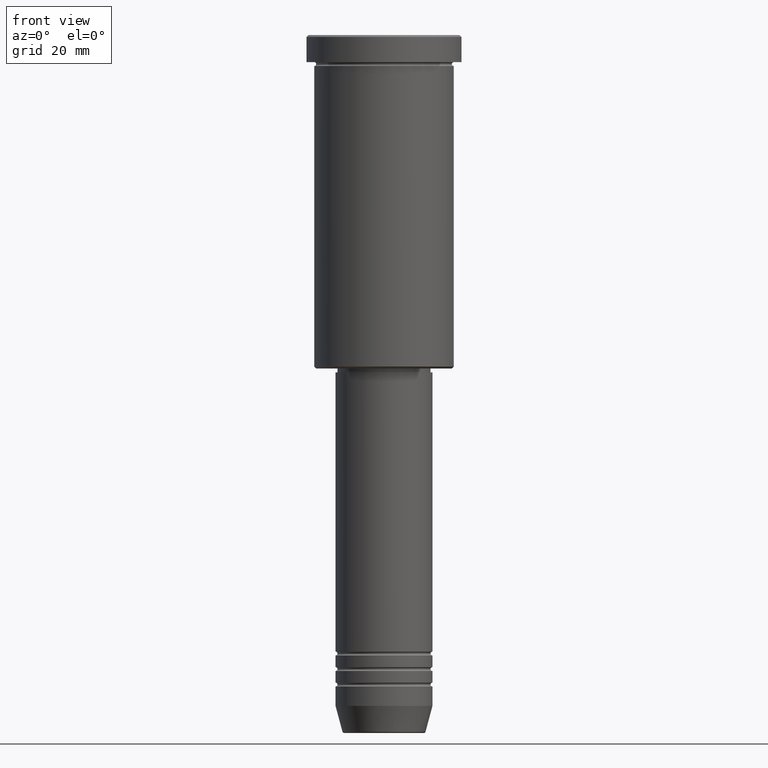
[diagram: clean part render]
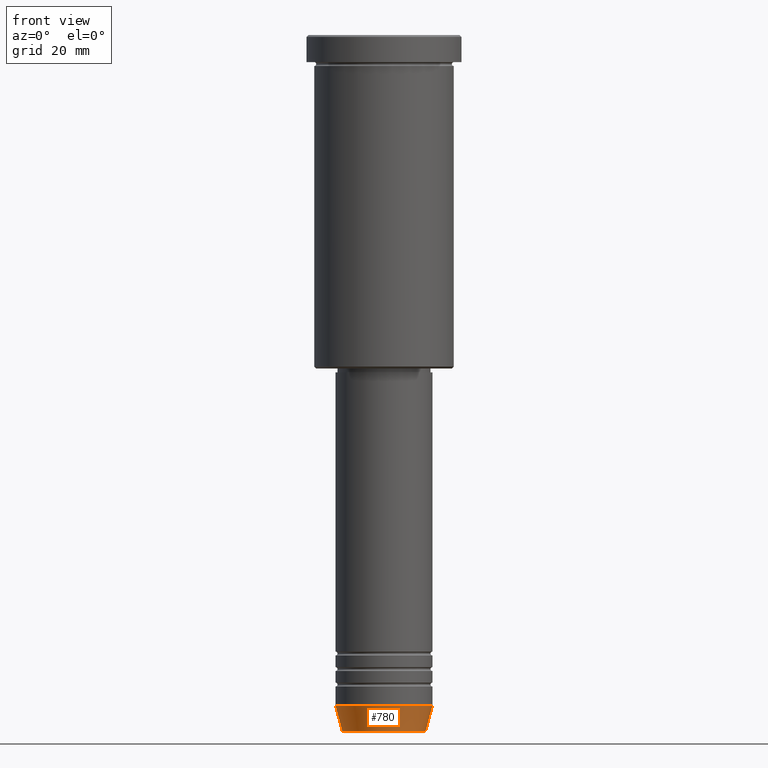
[diagram: same view with one face highlighted and labeled with its STEP entity id]
A machine part, front view. The second image highlights one B-rep face of the part: STEP entity #780.
In plain terms, the highlighted conical surface has half-angle 15 deg.
Its self-contained STEP definition (entity closure, byte-faithful):
#163 = VECTOR ( 'NONE', #670, 1000.000000000000000 ) ;
#178 = DIRECTION ( 'NONE',  ( 1.000000000000000000, 0.000000000000000000, 0.000000000000000000 ) ) ;
#197 = DIRECTION ( 'NONE',  ( -0.000000000000000000, -0.000000000000000000, 1.000000000000000000 ) ) ;
#213 = CARTESIAN_POINT ( 'NONE',  ( -10.72365507213719127, 1.422038742429750516E-15, -179.6294095225512706 ) ) ;
#271 = CARTESIAN_POINT ( 'NONE',  ( 12.50000000000000000, 0.000000000000000000, -173.0000000000000284 ) ) ;
#275 = DIRECTION ( 'NONE',  ( -0.000000000000000000, -0.000000000000000000, 1.000000000000000000 ) ) ;
#284 = CARTESIAN_POINT ( 'NONE',  ( 0.000000000000000000, 0.000000000000000000, -173.0000000000000284 ) ) ;
#299 = LINE ( 'NONE', #398, #163 ) ;
#368 = ORIENTED_EDGE ( 'NONE', *, *, #707, .F. ) ;
#393 = ORIENTED_EDGE ( 'NONE', *, *, #504, .F. ) ;
#398 = CARTESIAN_POINT ( 'NONE',  ( 12.50000000000000000, 0.000000000000000000, -173.0000000000000284 ) ) ;
#424 = CONICAL_SURFACE ( 'NONE', #873, 12.50000000000000000, 0.2617993877991500740 ) ;
#433 = VERTEX_POINT ( 'NONE', #271 ) ;
#476 = DIRECTION ( 'NONE',  ( 1.000000000000000000, 0.000000000000000000, 0.000000000000000000 ) ) ;
#499 = VERTEX_POINT ( 'NONE', #1007 ) ;
#504 = EDGE_CURVE ( 'NONE', #805, #499, #829, .T. ) ;
#524 = AXIS2_PLACEMENT_3D ( 'NONE', #284, #275, #178 ) ;
#642 = CIRCLE ( 'NONE', #1155, 10.72365507213719127 ) ;
#653 = CARTESIAN_POINT ( 'NONE',  ( 0.000000000000000000, 0.000000000000000000, -173.0000000000000284 ) ) ;
#670 = DIRECTION ( 'NONE',  ( 0.2588190451025213501, 0.000000000000000000, 0.9659258262890680902 ) ) ;
#707 = EDGE_CURVE ( 'NONE', #499, #433, #967, .T. ) ;
#722 = ORIENTED_EDGE ( 'NONE', *, *, #855, .T. ) ;
#745 = FACE_OUTER_BOUND ( 'NONE', #1020, .T. ) ;
#771 = CARTESIAN_POINT ( 'NONE',  ( 10.72365507213719127, 0.000000000000000000, -179.6294095225512706 ) ) ;
#778 = CARTESIAN_POINT ( 'NONE',  ( 0.000000000000000000, 0.000000000000000000, -179.6294095225512706 ) ) ;
#780 = ADVANCED_FACE ( 'NONE', ( #745 ), #424, .T. ) ;
#787 = EDGE_CURVE ( 'NONE', #805, #857, #642, .T. ) ;
#797 = CARTESIAN_POINT ( 'NONE',  ( -12.50000000000000000, 1.530808498934191521E-15, -173.0000000000000284 ) ) ;
#805 = VERTEX_POINT ( 'NONE', #213 ) ;
#829 = LINE ( 'NONE', #797, #1153 ) ;
#841 = DIRECTION ( 'NONE',  ( 1.000000000000000000, 0.000000000000000000, 0.000000000000000000 ) ) ;
#855 = EDGE_CURVE ( 'NONE', #857, #433, #299, .T. ) ;
#857 = VERTEX_POINT ( 'NONE', #771 ) ;
#873 = AXIS2_PLACEMENT_3D ( 'NONE', #653, #197, #841 ) ;
#967 = CIRCLE ( 'NONE', #524, 12.50000000000000000 ) ;
#1007 = CARTESIAN_POINT ( 'NONE',  ( -12.50000000000000000, 1.530808498934191521E-15, -173.0000000000000284 ) ) ;
#1020 = EDGE_LOOP ( 'NONE', ( #393, #1132, #722, #368 ) ) ;
#1034 = DIRECTION ( 'NONE',  ( -0.000000000000000000, -0.000000000000000000, 1.000000000000000000 ) ) ;
#1132 = ORIENTED_EDGE ( 'NONE', *, *, #787, .T. ) ;
#1153 = VECTOR ( 'NONE', #1159, 1000.000000000000000 ) ;
#1155 = AXIS2_PLACEMENT_3D ( 'NONE', #778, #1034, #476 ) ;
#1159 = DIRECTION ( 'NONE',  ( -0.2588190451025213501, 3.169619151431772337E-17, 0.9659258262890680902 ) ) ;